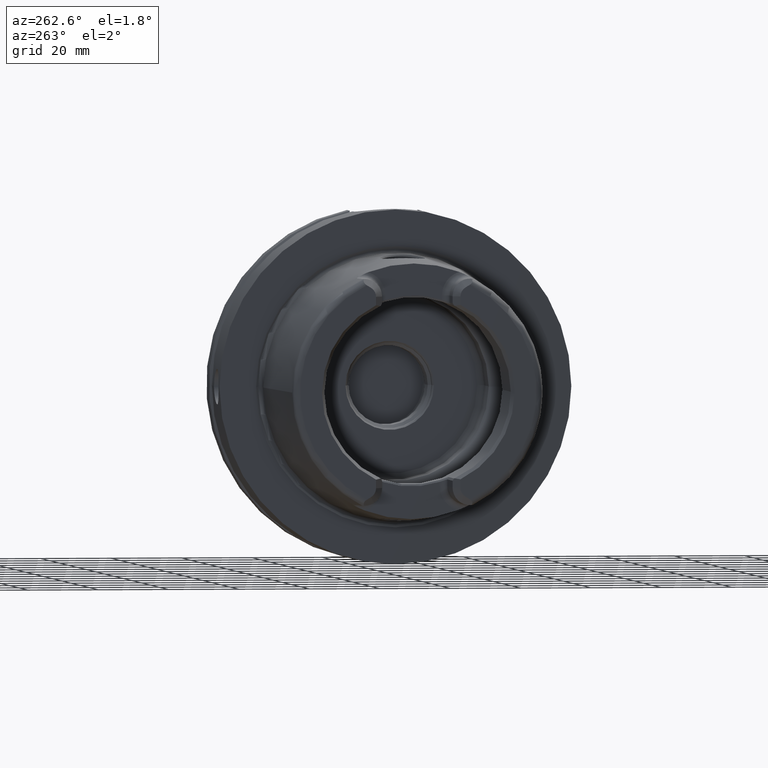
[diagram: clean part render]
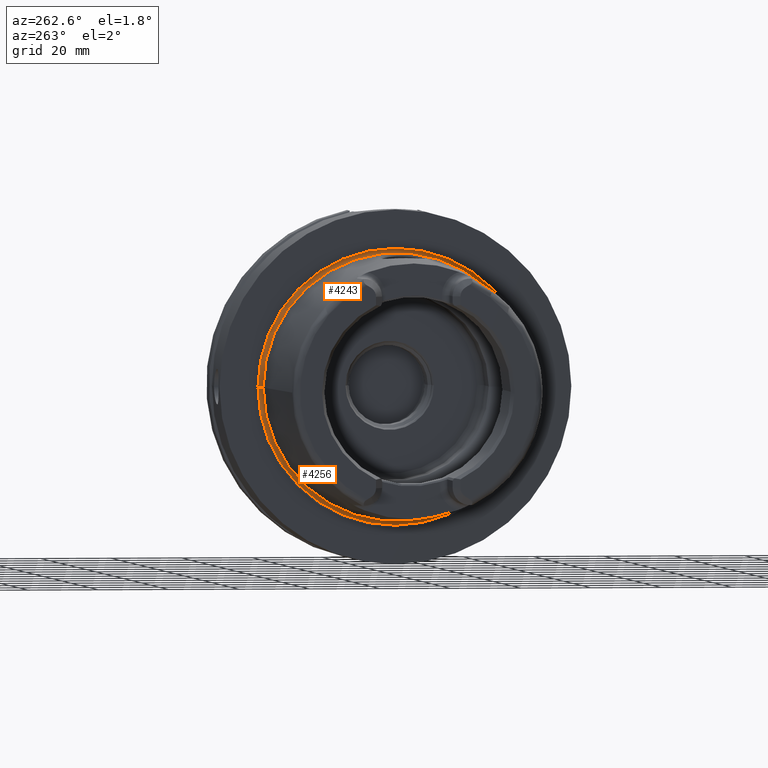
[diagram: same view with one multi-face feature highlighted, each face labeled with its STEP entity id]
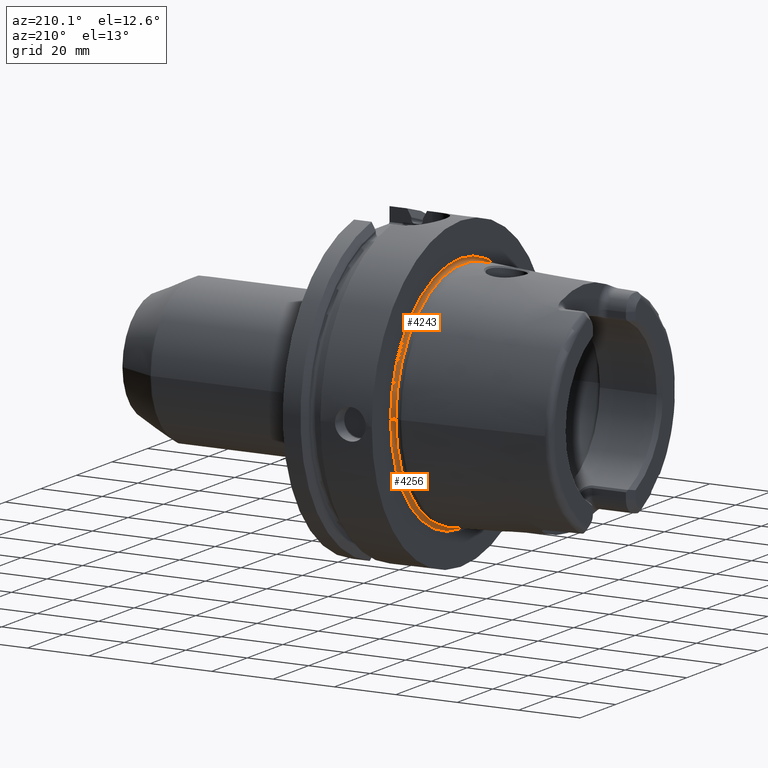
[diagram: same view with one multi-face feature highlighted, each face labeled with its STEP entity id]
A machine part, auxiliary view. The highlighted faces form ONE feature: a constant-radius fillet chain: 2 tangent blend faces with common blend radius 1 mm. The faces share edges in the B-rep.
A second angle (auxiliary view) of the same feature is appended — it is thin or edge-on in the first view.
Their STEP definitions:
[1] entity #4243 (Torus):
#872=CARTESIAN_POINT('',(-7.005712886803E-1,0.E0,0.E0));
#873=DIRECTION('',(-1.E0,0.E0,0.E0));
#874=DIRECTION('',(0.E0,-1.E0,0.E0));
#875=AXIS2_PLACEMENT_3D('',#872,#873,#874);
#877=CARTESIAN_POINT('',(2.298462793018E-1,0.E0,0.E0));
#878=DIRECTION('',(-1.E0,0.E0,0.E0));
#879=DIRECTION('',(0.E0,-1.E0,0.E0));
#880=AXIS2_PLACEMENT_3D('',#877,#878,#879);
#882=CARTESIAN_POINT('',(-7.005712886803E-1,3.868225E1,0.E0));
#883=DIRECTION('',(0.E0,0.E0,-1.E0));
#884=DIRECTION('',(9.304175679820E-1,3.665012267243E-1,0.E0));
#885=AXIS2_PLACEMENT_3D('',#882,#883,#884);
#887=CARTESIAN_POINT('',(-7.005712886803E-1,-3.868225E1,0.E0));
#888=DIRECTION('',(0.E0,0.E0,1.E0));
#889=DIRECTION('',(9.304175679820E-1,-3.665012267243E-1,0.E0));
#890=AXIS2_PLACEMENT_3D('',#887,#888,#889);
#2859=CARTESIAN_POINT('',(2.298462793018E-1,-3.904875122672E1,0.E0));
#2860=CARTESIAN_POINT('',(-7.005712886803E-1,-3.768225E1,0.E0));
#2861=VERTEX_POINT('',#2859);
#2862=VERTEX_POINT('',#2860);
#2867=CARTESIAN_POINT('',(2.298462793018E-1,3.904875122672E1,0.E0));
#2868=CARTESIAN_POINT('',(-7.005712886803E-1,3.768225E1,0.E0));
#2869=VERTEX_POINT('',#2867);
#2870=VERTEX_POINT('',#2868);
#4229=CARTESIAN_POINT('',(-7.005712886803E-1,0.E0,0.E0));
#4230=DIRECTION('',(-1.E0,0.E0,0.E0));
#4231=DIRECTION('',(0.E0,1.E0,0.E0));
#4232=AXIS2_PLACEMENT_3D('',#4229,#4230,#4231);
#4233=TOROIDAL_SURFACE('',#4232,3.868225E1,1.E0);
#4235=ORIENTED_EDGE('',*,*,#4234,.T.);
#4236=ORIENTED_EDGE('',*,*,#4224,.T.);
#4238=ORIENTED_EDGE('',*,*,#4237,.F.);
#4240=ORIENTED_EDGE('',*,*,#4239,.F.);
#4241=EDGE_LOOP('',(#4235,#4236,#4238,#4240));
#4242=FACE_OUTER_BOUND('',#4241,.F.);
#4243=ADVANCED_FACE('',(#4242),#4233,.F.);
#876=CIRCLE('',#875,3.768225E1);
#881=CIRCLE('',#880,3.904875122672E1);
#886=CIRCLE('',#885,1.E0);
#891=CIRCLE('',#890,1.E0);
#4224=EDGE_CURVE('',#2862,#2870,#876,.T.);
#4234=EDGE_CURVE('',#2861,#2862,#891,.T.);
#4237=EDGE_CURVE('',#2869,#2870,#886,.T.);
#4239=EDGE_CURVE('',#2861,#2869,#881,.T.);
[2] entity #4256 (Torus):
#867=CARTESIAN_POINT('',(-7.005712886803E-1,0.E0,0.E0));
#868=DIRECTION('',(-1.E0,0.E0,0.E0));
#869=DIRECTION('',(0.E0,1.E0,0.E0));
#870=AXIS2_PLACEMENT_3D('',#867,#868,#869);
#882=CARTESIAN_POINT('',(-7.005712886803E-1,3.868225E1,0.E0));
#883=DIRECTION('',(0.E0,0.E0,-1.E0));
#884=DIRECTION('',(9.304175679820E-1,3.665012267243E-1,0.E0));
#885=AXIS2_PLACEMENT_3D('',#882,#883,#884);
#887=CARTESIAN_POINT('',(-7.005712886803E-1,-3.868225E1,0.E0));
#888=DIRECTION('',(0.E0,0.E0,1.E0));
#889=DIRECTION('',(9.304175679820E-1,-3.665012267243E-1,0.E0));
#890=AXIS2_PLACEMENT_3D('',#887,#888,#889);
#892=CARTESIAN_POINT('',(2.298462793018E-1,0.E0,0.E0));
#893=DIRECTION('',(-1.E0,0.E0,0.E0));
#894=DIRECTION('',(0.E0,1.E0,0.E0));
#895=AXIS2_PLACEMENT_3D('',#892,#893,#894);
#2859=CARTESIAN_POINT('',(2.298462793018E-1,-3.904875122672E1,0.E0));
#2860=CARTESIAN_POINT('',(-7.005712886803E-1,-3.768225E1,0.E0));
#2861=VERTEX_POINT('',#2859);
#2862=VERTEX_POINT('',#2860);
#2867=CARTESIAN_POINT('',(2.298462793018E-1,3.904875122672E1,0.E0));
#2868=CARTESIAN_POINT('',(-7.005712886803E-1,3.768225E1,0.E0));
#2869=VERTEX_POINT('',#2867);
#2870=VERTEX_POINT('',#2868);
#4244=CARTESIAN_POINT('',(-7.005712886803E-1,0.E0,0.E0));
#4245=DIRECTION('',(-1.E0,0.E0,0.E0));
#4246=DIRECTION('',(0.E0,-1.E0,0.E0));
#4247=AXIS2_PLACEMENT_3D('',#4244,#4245,#4246);
#4248=TOROIDAL_SURFACE('',#4247,3.868225E1,1.E0);
#4249=ORIENTED_EDGE('',*,*,#4237,.T.);
#4250=ORIENTED_EDGE('',*,*,#4211,.T.);
#4251=ORIENTED_EDGE('',*,*,#4234,.F.);
#4253=ORIENTED_EDGE('',*,*,#4252,.F.);
#4254=EDGE_LOOP('',(#4249,#4250,#4251,#4253));
#4255=FACE_OUTER_BOUND('',#4254,.F.);
#4256=ADVANCED_FACE('',(#4255),#4248,.F.);
#871=CIRCLE('',#870,3.768225E1);
#886=CIRCLE('',#885,1.E0);
#891=CIRCLE('',#890,1.E0);
#896=CIRCLE('',#895,3.904875122672E1);
#4211=EDGE_CURVE('',#2870,#2862,#871,.T.);
#4234=EDGE_CURVE('',#2861,#2862,#891,.T.);
#4237=EDGE_CURVE('',#2869,#2870,#886,.T.);
#4252=EDGE_CURVE('',#2869,#2861,#896,.T.);